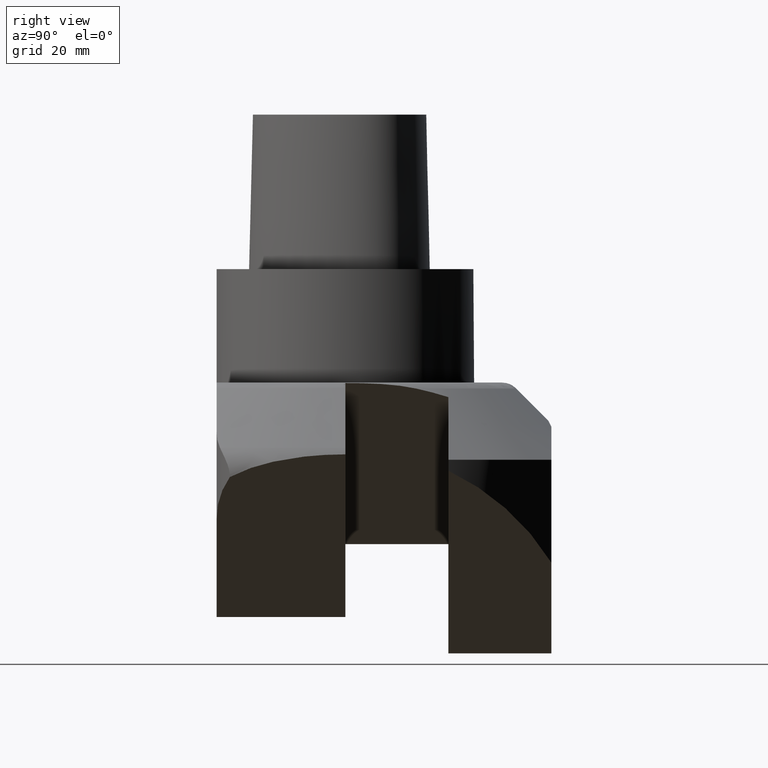
[diagram: clean part render]
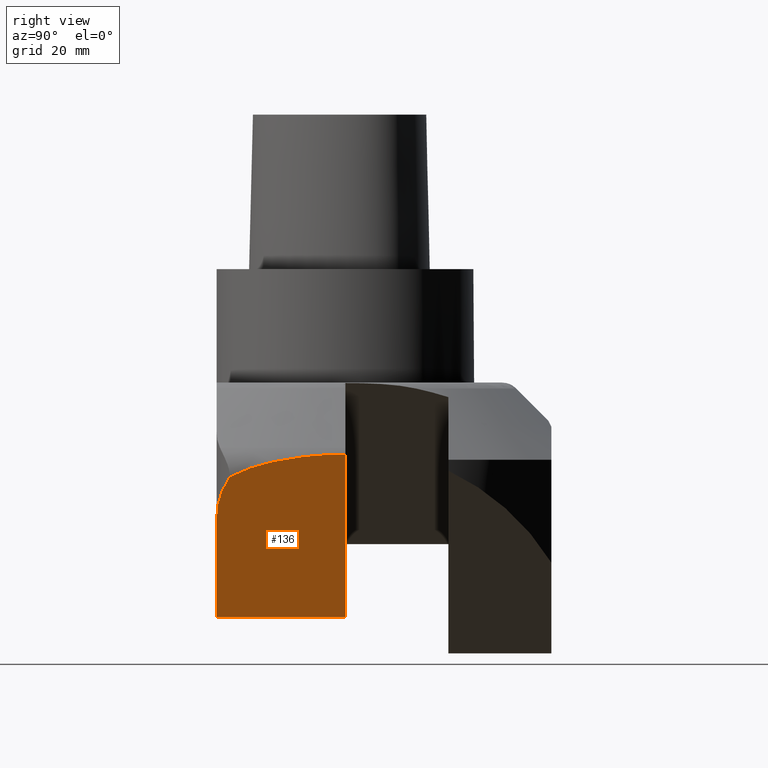
[diagram: same view with one face highlighted and labeled with its STEP entity id]
A machine part, right view. The second image highlights one B-rep face of the part: STEP entity #136.
In plain terms, the highlighted planar face has unit normal (-0.7071, 0, 0.7071).
Its self-contained STEP definition (entity closure, byte-faithful):
#136=ADVANCED_FACE('240[2]',(#391),#392,.F.);
#171=EDGE_CURVE('240[2]',#447,#448,#449,.T.);
#203=EDGE_CURVE('240[2]',#494,#444,#495,.T.);
#225=EDGE_CURVE('240[2]',#488,#494,#521,.T.);
#283=EDGE_CURVE('240[2]',#448,#444,#595,.T.);
#326=EDGE_CURVE('240[2]',#447,#488,#643,.T.);
#391=FACE_OUTER_BOUND('',#748,.T.);
#392=PLANE('',#749);
#444=VERTEX_POINT('',#1214);
#447=VERTEX_POINT('',#1218);
#448=VERTEX_POINT('',#1219);
#449=LINE('',#1220,#1221);
#488=VERTEX_POINT('',#1301);
#494=VERTEX_POINT('',#1315);
#495=B_SPLINE_CURVE_WITH_KNOTS('',3,(#1316,#1317,#1318,#1319,#1320,#1321,#1322,#1323,#1324,#1325,#1326,#1327,#1328,#1329,#1330,#1331),.UNSPECIFIED.,.F.,.F.,(4,3,2,3,2,2,4),(9.36330510801427,9.46297782984611,9.57942054672934,9.78523189412588,10.6974519234053,11.2515150099364,11.5995088355761),.UNSPECIFIED.);
#521=ELLIPSE('',#1418,19.6502799164301,13.8948461811216);
#595=LINE('',#1550,#1551);
#643=LINE('',#1651,#1652);
#748=EDGE_LOOP('',(#1800,#1801,#1802,#1803,#1804));
#749=AXIS2_PLACEMENT_3D('',#1805,#1806,#1807);
#1214=CARTESIAN_POINT('',(45.7057337572464,-3.80571216345479E-014,-35.9511208305356));
#1218=CARTESIAN_POINT('',(14.1421356114783,-25.0000000000339,-67.5147189763034));
#1219=CARTESIAN_POINT('',(14.1421356114783,-2.1316282072803E-014,-67.5147189763034));
#1220=CARTESIAN_POINT('',(14.1421356114783,-14.4796333777888,-67.5147189763034));
#1221=VECTOR('',#1854,1.0);
#1301=CARTESIAN_POINT('',(32.9646447038871,-24.9999999999999,-48.6922098838947));
#1315=CARTESIAN_POINT('',(41.3025087391453,-22.4297374580275,-40.3543458480421));
#1316=CARTESIAN_POINT('',(41.3025087391453,-22.4297374580275,-40.3543458480421));
#1317=CARTESIAN_POINT('',(41.4605938690567,-22.1403148690304,-40.1962607181306));
#1318=CARTESIAN_POINT('',(41.6117186323585,-21.8465211717778,-40.0451359554234));
#1319=CARTESIAN_POINT('',(41.755657224288,-21.5514333564165,-39.9011973634939));
#1320=CARTESIAN_POINT('',(41.9238135708667,-21.2066968424206,-39.7330410119712));
#1321=CARTESIAN_POINT('',(42.0872202600645,-20.8496661823266,-39.5696343277173));
#1322=CARTESIAN_POINT('',(42.52014821459,-19.8445495950402,-39.1367063731919));
#1323=CARTESIAN_POINT('',(42.7746248127058,-19.1830005049191,-38.8822297750761));
#1324=CARTESIAN_POINT('',(42.9999420350663,-18.5399415221176,-38.6569125527156));
#1325=CARTESIAN_POINT('',(43.9986181808613,-15.6897037119091,-37.6582364069206));
#1326=CARTESIAN_POINT('',(44.6726722516681,-12.5297631654,-36.9841823357499));
#1327=CARTESIAN_POINT('',(45.3517348943714,-7.50773746069824,-36.3051196930467));
#1328=CARTESIAN_POINT('',(45.5229325112382,-5.57196608390967,-36.133922076534));
#1329=CARTESIAN_POINT('',(45.6763606782012,-2.43392915937695,-35.980493909571));
#1330=CARTESIAN_POINT('',(45.7057337572464,-1.21545104784228,-35.9511208305356));
#1331=CARTESIAN_POINT('',(45.7057337572464,-3.80571216345479E-014,-35.9511208305356));
#1418=AXIS2_PLACEMENT_3D('',#1928,#1929,#1930);
#1550=CARTESIAN_POINT('',(8.83883476483212,-2.065822342446E-014,-72.8180198229495));
#1551=VECTOR('',#2034,10.0);
#1651=CARTESIAN_POINT('',(14.9586756845572,-25.0000000000324,-66.6981789032245));
#1652=VECTOR('',#2095,10.0);
#1800=ORIENTED_EDGE('',*,*,#225,.F.);
#1801=ORIENTED_EDGE('',*,*,#326,.F.);
#1802=ORIENTED_EDGE('',*,*,#171,.T.);
#1803=ORIENTED_EDGE('',*,*,#283,.T.);
#1804=ORIENTED_EDGE('',*,*,#203,.F.);
#1805=CARTESIAN_POINT('',(10.6066017177985,-2.065822342446E-014,-71.0502528699832));
#1806=DIRECTION('',(-0.707106781186545,1.73191211247099E-016,0.70710678118655));
#1807=DIRECTION('',(2.44929359829472E-016,1.0,0.0));
#1854=DIRECTION('',(1.22464679914736E-016,1.0,-1.22464679914736E-016));
#1928=CARTESIAN_POINT('',(33.2473433451874,-11.108029949815,-48.4095112425944));
#1929=DIRECTION('',(-0.707106781186545,1.73191211247099E-016,0.70710678118655));
#1930=DIRECTION('',(0.70710678118655,-2.76845563717119E-015,0.707106781186545));
#2034=DIRECTION('',(0.70710678118655,-5.81784917600496E-031,0.707106781186545));
#2095=DIRECTION('',(0.70710678118655,1.27542375364708E-012,0.707106781186545));